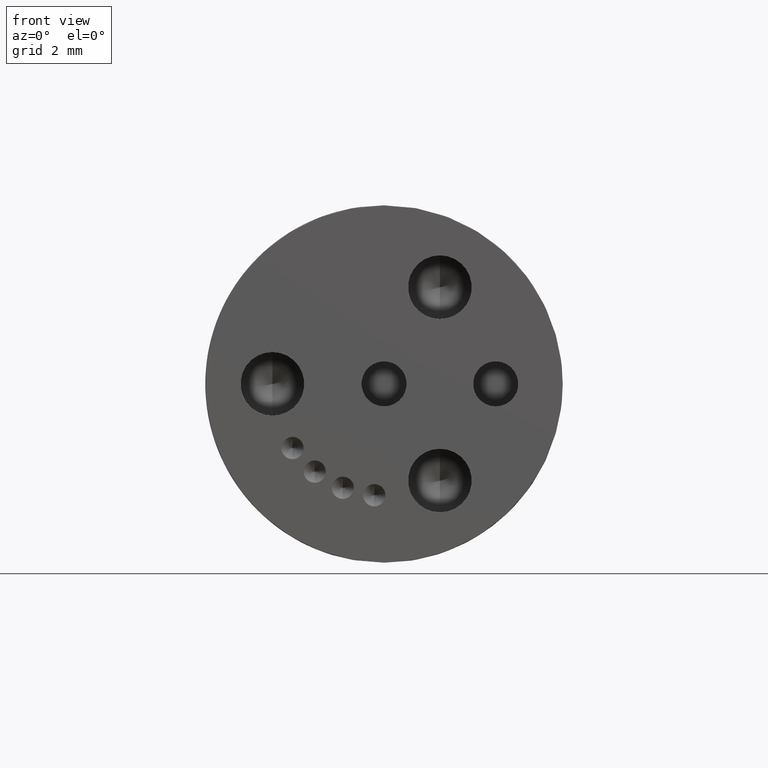
[diagram: clean part render]
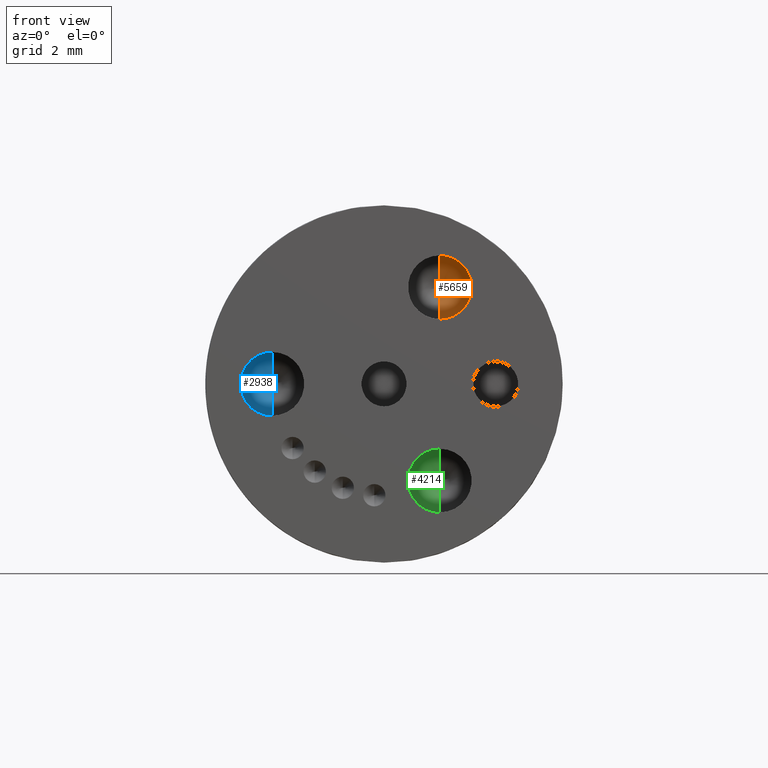
[diagram: same view with three faces highlighted in distinct colors, each labeled with its STEP entity id]
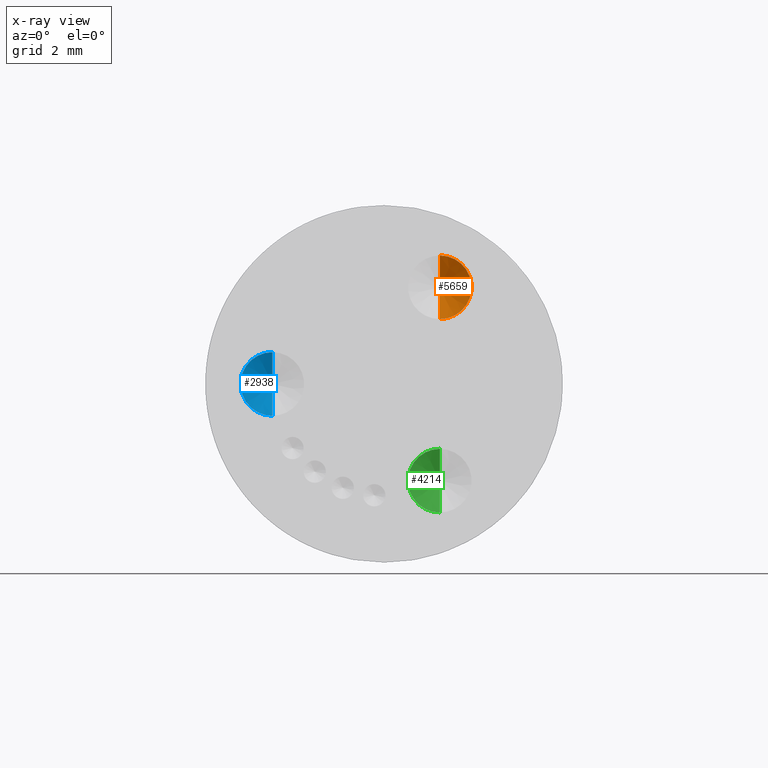
[diagram: x-ray of the same camera — body ghosted, the three highlighted faces saturated]
A machine part, front view with three faces highlighted in distinct colors.
The next image is the same camera in x-ray (body ghosted, the three faces saturated) — at least one of them is partly hidden behind the body in this view.
Their STEP definitions:

[orange] entity #5659 — the highlighted conical surface has half-angle 59 deg.
#86 = CARTESIAN_POINT ( 'NONE',  ( 0.07050441801256186700, -0.2358196174343081800, 0.1498254389885609300 ) ) ;
#346 = DIRECTION ( 'NONE',  ( 0.0000000000000000000, 0.0000000000000000000, -1.000000000000000000 ) ) ;
#471 = VECTOR ( 'NONE', #2064, 39.37007874015748100 ) ;
#597 = ORIENTED_EDGE ( 'NONE', *, *, #2511, .T. ) ;
#811 = CARTESIAN_POINT ( 'NONE',  ( 0.07050441801256185400, -0.2358196174343081800, 0.06082543898856102000 ) ) ;
#823 = CARTESIAN_POINT ( 'NONE',  ( 0.07050441801256186700, -0.2358196174343081800, 0.1498254389885609300 ) ) ;
#1289 = DIRECTION ( 'NONE',  ( 1.049727191138618100E-016, -0.5150380749100549300, 0.8571673007021117800 ) ) ;
#1475 = AXIS2_PLACEMENT_3D ( 'NONE', #2226, #2669, #3607 ) ;
#1572 = VERTEX_POINT ( 'NONE', #811 ) ;
#1749 = CARTESIAN_POINT ( 'NONE',  ( 0.07050441801256179800, -0.2090813198875817500, 0.1053254389885609800 ) ) ;
#2064 = DIRECTION ( 'NONE',  ( 0.0000000000000000000, -0.5150380749100549300, -0.8571673007021117800 ) ) ;
#2088 = CONICAL_SURFACE ( 'NONE', #1475, 0.04449999999999996300, 1.029744258676653600 ) ;
#2226 = CARTESIAN_POINT ( 'NONE',  ( 0.07050441801256185400, -0.2358196174343081800, 0.1053254389885609800 ) ) ;
#2371 = FACE_OUTER_BOUND ( 'NONE', #4237, .T. ) ;
#2511 = EDGE_CURVE ( 'NONE', #1572, #4528, #3097, .T. ) ;
#2669 = DIRECTION ( 'NONE',  ( -0.0000000000000000000, -1.000000000000000000, -0.0000000000000000000 ) ) ;
#2877 = VECTOR ( 'NONE', #1289, 39.37007874015748100 ) ;
#3097 = CIRCLE ( 'NONE', #4842, 0.04449999999999996300 ) ;
#3120 = DIRECTION ( 'NONE',  ( -0.0000000000000000000, -1.000000000000000000, -0.0000000000000000000 ) ) ;
#3136 = EDGE_CURVE ( 'NONE', #3153, #4528, #4104, .T. ) ;
#3153 = VERTEX_POINT ( 'NONE', #1749 ) ;
#3313 = ORIENTED_EDGE ( 'NONE', *, *, #3756, .T. ) ;
#3429 = ORIENTED_EDGE ( 'NONE', *, *, #3136, .F. ) ;
#3607 = DIRECTION ( 'NONE',  ( 0.0000000000000000000, 0.0000000000000000000, -1.000000000000000000 ) ) ;
#3756 = EDGE_CURVE ( 'NONE', #3153, #1572, #5393, .T. ) ;
#4104 = LINE ( 'NONE', #823, #2877 ) ;
#4237 = EDGE_LOOP ( 'NONE', ( #3429, #3313, #597 ) ) ;
#4528 = VERTEX_POINT ( 'NONE', #86 ) ;
#4827 = CARTESIAN_POINT ( 'NONE',  ( 0.07050441801256185400, -0.2358196174343081800, 0.06082543898856102000 ) ) ;
#4842 = AXIS2_PLACEMENT_3D ( 'NONE', #5885, #3120, #346 ) ;
#5393 = LINE ( 'NONE', #4827, #471 ) ;
#5659 = ADVANCED_FACE ( 'NONE', ( #2371 ), #2088, .F. ) ;
#5885 = CARTESIAN_POINT ( 'NONE',  ( 0.07050441801256185400, -0.2358196174343081800, 0.1053254389885609800 ) ) ;

[blue] entity #2938 — the highlighted conical surface has half-angle 59 deg.
#555 = VECTOR ( 'NONE', #4898, 39.37007874015748100 ) ;
#786 = VECTOR ( 'NONE', #2974, 39.37007874015748100 ) ;
#1352 = CARTESIAN_POINT ( 'NONE',  ( -0.1638705819874388700, -0.2090813198875817500, -0.02999103035275719000 ) ) ;
#1596 = VERTEX_POINT ( 'NONE', #2667 ) ;
#1633 = AXIS2_PLACEMENT_3D ( 'NONE', #5244, #5726, #2028 ) ;
#1640 = VERTEX_POINT ( 'NONE', #2736 ) ;
#1718 = CIRCLE ( 'NONE', #4685, 0.04449999999999996300 ) ;
#1852 = ORIENTED_EDGE ( 'NONE', *, *, #3009, .F. ) ;
#1938 = LINE ( 'NONE', #4449, #555 ) ;
#2028 = DIRECTION ( 'NONE',  ( 0.0000000000000000000, 0.0000000000000000000, -1.000000000000000000 ) ) ;
#2258 = CARTESIAN_POINT ( 'NONE',  ( -0.1638705819874388100, -0.2358196174343081800, -0.02999103035275719000 ) ) ;
#2385 = EDGE_CURVE ( 'NONE', #4204, #1596, #5847, .T. ) ;
#2512 = CARTESIAN_POINT ( 'NONE',  ( -0.1638705819874388100, -0.2358196174343081800, 0.01450896964724277500 ) ) ;
#2667 = CARTESIAN_POINT ( 'NONE',  ( -0.1638705819874388100, -0.2358196174343081800, 0.01450896964724277500 ) ) ;
#2716 = DIRECTION ( 'NONE',  ( 0.0000000000000000000, 0.0000000000000000000, -1.000000000000000000 ) ) ;
#2736 = CARTESIAN_POINT ( 'NONE',  ( -0.1638705819874388100, -0.2358196174343081800, -0.07449103035275715700 ) ) ;
#2938 = ADVANCED_FACE ( 'NONE', ( #5617 ), #3029, .F. ) ;
#2974 = DIRECTION ( 'NONE',  ( 1.049727191138618400E-016, -0.5150380749100544900, 0.8571673007021122200 ) ) ;
#3009 = EDGE_CURVE ( 'NONE', #4204, #1640, #1938, .T. ) ;
#3029 = CONICAL_SURFACE ( 'NONE', #1633, 0.04449999999999996300, 1.029744258676654100 ) ;
#4204 = VERTEX_POINT ( 'NONE', #1352 ) ;
#4449 = CARTESIAN_POINT ( 'NONE',  ( -0.1638705819874388100, -0.2358196174343081800, -0.07449103035275715700 ) ) ;
#4685 = AXIS2_PLACEMENT_3D ( 'NONE', #2258, #5476, #2716 ) ;
#4719 = ORIENTED_EDGE ( 'NONE', *, *, #5255, .T. ) ;
#4802 = EDGE_LOOP ( 'NONE', ( #1852, #5532, #4719 ) ) ;
#4898 = DIRECTION ( 'NONE',  ( 0.0000000000000000000, -0.5150380749100544900, -0.8571673007021122200 ) ) ;
#5244 = CARTESIAN_POINT ( 'NONE',  ( -0.1638705819874388100, -0.2358196174343081800, -0.02999103035275719000 ) ) ;
#5255 = EDGE_CURVE ( 'NONE', #1596, #1640, #1718, .T. ) ;
#5476 = DIRECTION ( 'NONE',  ( -0.0000000000000000000, -1.000000000000000000, -0.0000000000000000000 ) ) ;
#5532 = ORIENTED_EDGE ( 'NONE', *, *, #2385, .T. ) ;
#5617 = FACE_OUTER_BOUND ( 'NONE', #4802, .T. ) ;
#5726 = DIRECTION ( 'NONE',  ( -0.0000000000000000000, -1.000000000000000000, -0.0000000000000000000 ) ) ;
#5847 = LINE ( 'NONE', #2512, #786 ) ;

[green] entity #4214 — the highlighted conical surface has half-angle 59 deg.
#59 = CONICAL_SURFACE ( 'NONE', #1392, 0.04449999999999996300, 1.029744258676653900 ) ;
#211 = LINE ( 'NONE', #5860, #3742 ) ;
#320 = DIRECTION ( 'NONE',  ( 1.049727191138618300E-016, -0.5150380749100547100, 0.8571673007021120000 ) ) ;
#501 = LINE ( 'NONE', #2924, #1448 ) ;
#521 = VERTEX_POINT ( 'NONE', #5664 ) ;
#709 = AXIS2_PLACEMENT_3D ( 'NONE', #4595, #1829, #5048 ) ;
#1001 = EDGE_CURVE ( 'NONE', #3763, #2012, #501, .T. ) ;
#1392 = AXIS2_PLACEMENT_3D ( 'NONE', #2285, #1410, #1881 ) ;
#1410 = DIRECTION ( 'NONE',  ( -0.0000000000000000000, -1.000000000000000000, -0.0000000000000000000 ) ) ;
#1448 = VECTOR ( 'NONE', #3410, 39.37007874015748100 ) ;
#1598 = CARTESIAN_POINT ( 'NONE',  ( 0.07050441801255985500, -0.2090813198875817500, -0.1653074996940764900 ) ) ;
#1829 = DIRECTION ( 'NONE',  ( -0.0000000000000000000, -1.000000000000000000, -0.0000000000000000000 ) ) ;
#1881 = DIRECTION ( 'NONE',  ( 0.0000000000000000000, 0.0000000000000000000, -1.000000000000000000 ) ) ;
#2012 = VERTEX_POINT ( 'NONE', #2749 ) ;
#2285 = CARTESIAN_POINT ( 'NONE',  ( 0.07050441801255991100, -0.2358196174343081800, -0.1653074996940764900 ) ) ;
#2724 = EDGE_CURVE ( 'NONE', #521, #2012, #4183, .T. ) ;
#2749 = CARTESIAN_POINT ( 'NONE',  ( 0.07050441801255991100, -0.2358196174343081800, -0.2098074996940764400 ) ) ;
#2924 = CARTESIAN_POINT ( 'NONE',  ( 0.07050441801255991100, -0.2358196174343081800, -0.2098074996940764400 ) ) ;
#3225 = ORIENTED_EDGE ( 'NONE', *, *, #2724, .T. ) ;
#3410 = DIRECTION ( 'NONE',  ( 0.0000000000000000000, -0.5150380749100547100, -0.8571673007021120000 ) ) ;
#3742 = VECTOR ( 'NONE', #320, 39.37007874015748100 ) ;
#3747 = FACE_OUTER_BOUND ( 'NONE', #5459, .T. ) ;
#3763 = VERTEX_POINT ( 'NONE', #1598 ) ;
#4183 = CIRCLE ( 'NONE', #709, 0.04449999999999996300 ) ;
#4214 = ADVANCED_FACE ( 'NONE', ( #3747 ), #59, .F. ) ;
#4595 = CARTESIAN_POINT ( 'NONE',  ( 0.07050441801255991100, -0.2358196174343081800, -0.1653074996940764900 ) ) ;
#5048 = DIRECTION ( 'NONE',  ( 0.0000000000000000000, 0.0000000000000000000, -1.000000000000000000 ) ) ;
#5459 = EDGE_LOOP ( 'NONE', ( #5875, #5506, #3225 ) ) ;
#5506 = ORIENTED_EDGE ( 'NONE', *, *, #5549, .T. ) ;
#5549 = EDGE_CURVE ( 'NONE', #3763, #521, #211, .T. ) ;
#5664 = CARTESIAN_POINT ( 'NONE',  ( 0.07050441801255991100, -0.2358196174343081800, -0.1208074996940765200 ) ) ;
#5860 = CARTESIAN_POINT ( 'NONE',  ( 0.07050441801255991100, -0.2358196174343081800, -0.1208074996940765200 ) ) ;
#5875 = ORIENTED_EDGE ( 'NONE', *, *, #1001, .F. ) ;